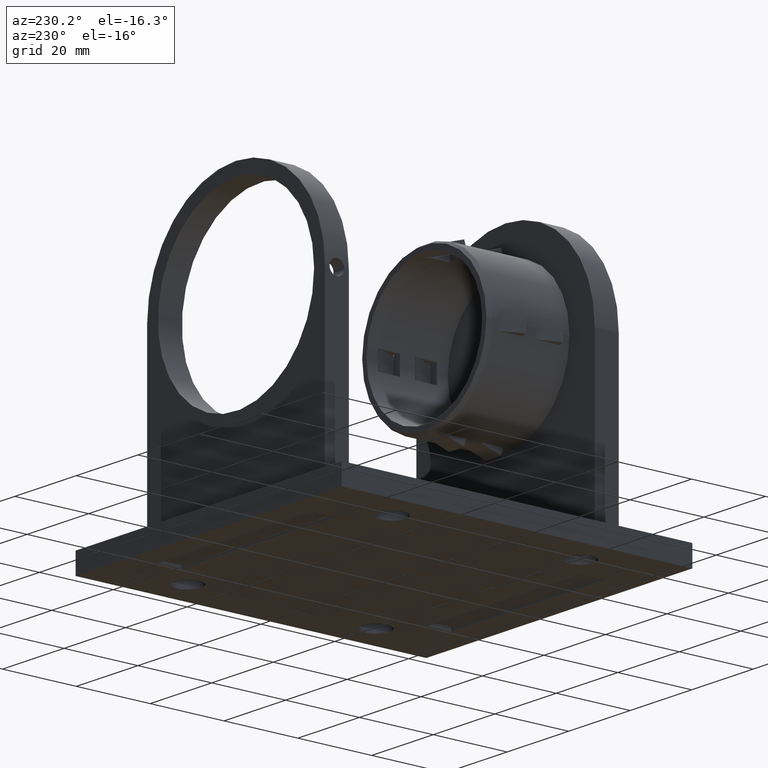
[diagram: clean part render]
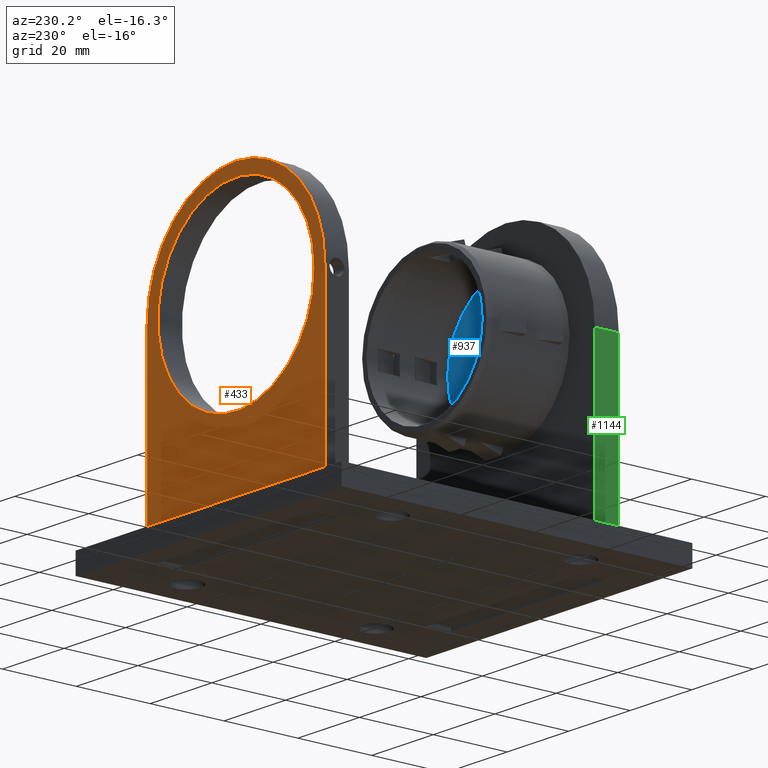
[diagram: same view with three faces highlighted in distinct colors, each labeled with its STEP entity id]
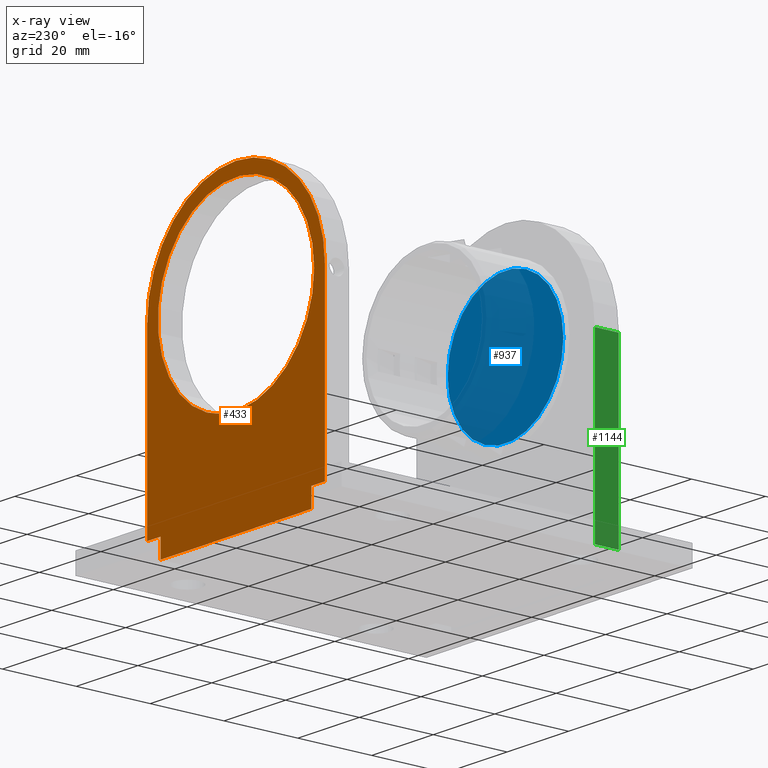
[diagram: x-ray of the same camera — body ghosted, the three highlighted faces saturated]
A machine part, auxiliary view with three faces highlighted in distinct colors.
The next image is the same camera in x-ray (body ghosted, the three faces saturated) — at least one of them is partly hidden behind the body in this view.
Their STEP definitions:

[orange] entity #433 — the highlighted planar face has unit normal (-0, 1, -0).
#433=ADVANCED_FACE('',(#1552,#1554),#1556,.T.);
#1552=FACE_BOUND('',#1553,.T.);
#1553=EDGE_LOOP('',(#2431,#2432,#2433,#2434,#2435,#2436,#2437,#2438));
#1554=FACE_BOUND('',#1555,.T.);
#1555=EDGE_LOOP('',(#2439));
#1556=PLANE('',#1557);
#1557=AXIS2_PLACEMENT_3D('',#1558,#1559,#1560);
#1558=CARTESIAN_POINT('',(0.,6.5,0.));
#1559=DIRECTION('',(-0.,1.,0.));
#1560=DIRECTION('',(1.,0.,0.));
#2431=ORIENTED_EDGE('',*,*,#3023,.T.);
#2432=ORIENTED_EDGE('',*,*,#3024,.T.);
#2433=ORIENTED_EDGE('',*,*,#3025,.T.);
#2434=ORIENTED_EDGE('',*,*,#3010,.T.);
#2435=ORIENTED_EDGE('',*,*,#3017,.T.);
#2436=ORIENTED_EDGE('',*,*,#3026,.T.);
#2437=ORIENTED_EDGE('',*,*,#3027,.T.);
#2438=ORIENTED_EDGE('',*,*,#3028,.T.);
#2439=ORIENTED_EDGE('',*,*,#3018,.T.);
#3010=EDGE_CURVE('',#3368,#3366,#3369,.T.);
#3017=EDGE_CURVE('',#3366,#3378,#3380,.T.);
#3018=EDGE_CURVE('',#3381,#3381,#3382,.F.);
#3023=EDGE_CURVE('',#3391,#3392,#3393,.T.);
#3024=EDGE_CURVE('',#3392,#3394,#3395,.T.);
#3025=EDGE_CURVE('',#3394,#3368,#3396,.T.);
#3026=EDGE_CURVE('',#3378,#3397,#3398,.T.);
#3027=EDGE_CURVE('',#3397,#3399,#3400,.T.);
#3028=EDGE_CURVE('',#3399,#3391,#3401,.T.);
#3366=VERTEX_POINT('',#4001);
#3368=VERTEX_POINT('',#4005);
#3369=LINE('',#4006,#4007);
#3378=VERTEX_POINT('',#4113);
#3380=CIRCLE('',#4117,28.9);
#3381=VERTEX_POINT('',#4121);
#3382=CIRCLE('',#4122,25.4);
#3391=VERTEX_POINT('',#4289);
#3392=VERTEX_POINT('',#4290);
#3393=LINE('',#4291,#4292);
#3394=VERTEX_POINT('',#4294);
#3395=LINE('',#4295,#4296);
#3396=LINE('',#4298,#4299);
#3397=VERTEX_POINT('',#4301);
#3398=LINE('',#4302,#4303);
#3399=VERTEX_POINT('',#4305);
#3400=LINE('',#4306,#4307);
#3401=LINE('',#4309,#4310);
#4001=CARTESIAN_POINT('',(28.9,6.5,0.));
#4005=CARTESIAN_POINT('',(28.9,6.5,47.1));
#4006=CARTESIAN_POINT('',(28.9,6.5,47.1));
#4007=VECTOR('',#4008,1.);
#4008=DIRECTION('',(0.,0.,-1.));
#4113=CARTESIAN_POINT('',(-28.9,6.5,-3.53922924953585E-015));
#4117=AXIS2_PLACEMENT_3D('',#4118,#4119,#4120);
#4118=CARTESIAN_POINT('',(0.,6.5,0.));
#4119=DIRECTION('',(-0.,1.,0.));
#4120=DIRECTION('',(1.,0.,0.));
#4121=CARTESIAN_POINT('',(25.4,6.5,0.));
#4122=AXIS2_PLACEMENT_3D('',#4123,#4124,#4125);
#4123=CARTESIAN_POINT('',(0.,6.5,0.));
#4124=DIRECTION('',(-0.,1.,0.));
#4125=DIRECTION('',(1.,0.,0.));
#4289=CARTESIAN_POINT('',(-24.5,6.5,52.1));
#4290=CARTESIAN_POINT('',(24.5,6.5,52.1));
#4291=CARTESIAN_POINT('',(-24.5,6.5,52.1));
#4292=VECTOR('',#4293,1.);
#4293=DIRECTION('',(1.,0.,0.));
#4294=CARTESIAN_POINT('',(24.5,6.5,47.1));
#4295=CARTESIAN_POINT('',(24.5,6.5,52.1));
#4296=VECTOR('',#4297,1.);
#4297=DIRECTION('',(0.,0.,-1.));
#4298=CARTESIAN_POINT('',(24.5,6.5,47.1));
#4299=VECTOR('',#4300,1.);
#4300=DIRECTION('',(1.,0.,0.));
#4301=CARTESIAN_POINT('',(-28.9,6.5,47.1));
#4302=CARTESIAN_POINT('',(-28.9,6.5,-3.53922924953585E-015));
#4303=VECTOR('',#4304,1.);
#4304=DIRECTION('',(-7.5429165155E-017,0.,1.));
#4305=CARTESIAN_POINT('',(-24.5,6.5,47.1));
#4306=CARTESIAN_POINT('',(-28.9,6.5,47.1));
#4307=VECTOR('',#4308,1.);
#4308=DIRECTION('',(1.,0.,0.));
#4309=CARTESIAN_POINT('',(-24.5,6.5,47.1));
#4310=VECTOR('',#4311,1.);
#4311=DIRECTION('',(0.,0.,1.));

[blue] entity #937 — the highlighted planar face has unit normal (-0, 1, -0).
#937=ADVANCED_FACE('',(#1988),#1990,.T.);
#1988=FACE_BOUND('',#1989,.T.);
#1989=EDGE_LOOP('',(#2755));
#1990=PLANE('',#1991);
#1991=AXIS2_PLACEMENT_3D('',#1992,#1993,#1994);
#1992=CARTESIAN_POINT('',(0.,6.5,0.));
#1993=DIRECTION('',(-0.,1.,0.));
#1994=DIRECTION('',(1.,0.,0.));
#2755=ORIENTED_EDGE('',*,*,#3119,.F.);
#3119=EDGE_CURVE('',#3567,#3567,#3568,.F.);
#3567=VERTEX_POINT('',#4693);
#3568=CIRCLE('',#4694,18.8);
#4693=CARTESIAN_POINT('',(18.8,6.5,0.));
#4694=AXIS2_PLACEMENT_3D('',#4695,#4696,#4697);
#4695=CARTESIAN_POINT('',(0.,6.5,0.));
#4696=DIRECTION('',(-0.,1.,0.));
#4697=DIRECTION('',(1.,0.,0.));

[green] entity #1144 — the highlighted planar face has unit normal (-1, -0, -0).
#1144=ADVANCED_FACE('',(#2151),#2153,.T.);
#2151=FACE_BOUND('',#2152,.T.);
#2152=EDGE_LOOP('',(#2857,#2858,#2859,#2860));
#2153=PLANE('',#2154);
#2154=AXIS2_PLACEMENT_3D('',#2155,#2156,#2157);
#2155=CARTESIAN_POINT('',(29.,0.,47.1));
#2156=DIRECTION('',(1.,-0.,1.5085833031E-016));
#2157=DIRECTION('',(1.5085833031E-016,0.,-1.));
#2857=ORIENTED_EDGE('',*,*,#3263,.T.);
#2858=ORIENTED_EDGE('',*,*,#3264,.T.);
#2859=ORIENTED_EDGE('',*,*,#3148,.F.);
#2860=ORIENTED_EDGE('',*,*,#3261,.F.);
#3148=EDGE_CURVE('',#3620,#3622,#3623,.T.);
#3261=EDGE_CURVE('',#3786,#3620,#3788,.T.);
#3263=EDGE_CURVE('',#3786,#3790,#3791,.T.);
#3264=EDGE_CURVE('',#3790,#3622,#3792,.T.);
#3620=VERTEX_POINT('',#4814);
#3622=VERTEX_POINT('',#4818);
#3623=LINE('',#4819,#4820);
#3786=VERTEX_POINT('',#5219);
#3788=LINE('',#5223,#5224);
#3790=VERTEX_POINT('',#5229);
#3791=LINE('',#5230,#5231);
#3792=LINE('',#5233,#5234);
#4814=CARTESIAN_POINT('',(29.,6.5,47.1));
#4818=CARTESIAN_POINT('',(29.,6.5,0.));
#4819=CARTESIAN_POINT('',(29.,6.5,47.1));
#4820=VECTOR('',#4821,1.);
#4821=DIRECTION('',(1.5085833031E-016,0.,-1.));
#5219=CARTESIAN_POINT('',(29.,0.,47.1));
#5223=CARTESIAN_POINT('',(29.,0.,47.1));
#5224=VECTOR('',#5225,1.);
#5225=DIRECTION('',(0.,1.,0.));
#5229=CARTESIAN_POINT('',(29.,0.,0.));
#5230=CARTESIAN_POINT('',(29.,0.,47.1));
#5231=VECTOR('',#5232,1.);
#5232=DIRECTION('',(1.5085833031E-016,0.,-1.));
#5233=CARTESIAN_POINT('',(29.,0.,0.));
#5234=VECTOR('',#5235,1.);
#5235=DIRECTION('',(0.,1.,0.));